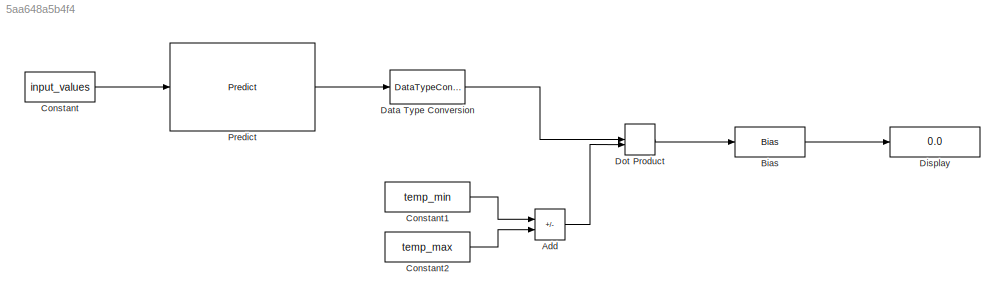
MODEL slx_5aa648a5b4f4
KIND model
CONFIG AbsTol = auto
CONFIG EnableMultiTasking = off
CONFIG FixedStep = auto
CONFIG MaxStep = auto
CONFIG MinStep = auto
CONFIG RelTol = 1e-3
CONFIG SampleTimeConstraint = Unconstrained
CONFIG SolverName = VariableStepAuto
CONFIG StartTime = 0.0
CONFIG StopTime = 10.0
BLOCK [Sum] Add
  IconShape = rectangular
  Inputs = -+
BLOCK [Bias] Bias
  Bias = temp_min
  SaturateOnIntegerOverflow = off
BLOCK [Constant] Constant
  Value = input_values
  VectorParams1D = off
BLOCK [Constant] Constant1
  Value = temp_min
BLOCK [Constant] Constant2
  Value = temp_max
BLOCK [DataTypeConversion] Data Type Conversion
  RndMeth = Floor
  SaturateOnIntegerOverflow = off
BLOCK [Display] Display
  Decimation = 1
BLOCK [DotProduct] Dot Product
  OutDataTypeStr = Inherit: Inherit via internal rule
BLOCK [Reference] Predict  REF=deeplib/Predict
  SourceBlock = deeplib/Predict
  SourceType = Predict
LINE Add:1 -> Dot Product:2
LINE Bias:1 -> Display:1
LINE Constant1:1 -> Add:1
LINE Constant2:1 -> Add:2
LINE Constant:1 -> Predict:1
LINE Data Type Conversion:1 -> Dot Product:1
LINE Dot Product:1 -> Bias:1
LINE Predict:1 -> Data Type Conversion:1
